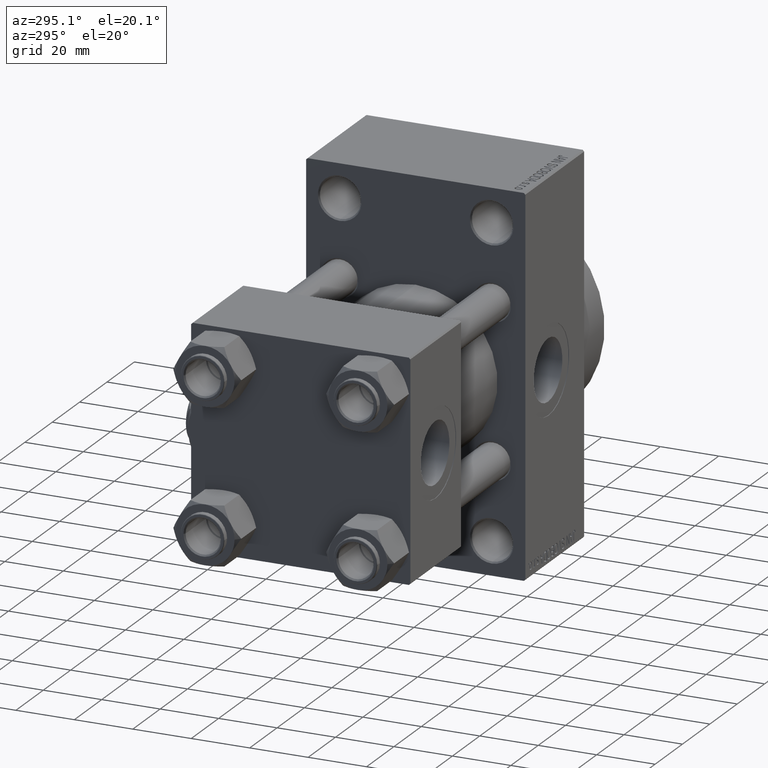
[diagram: clean part render]
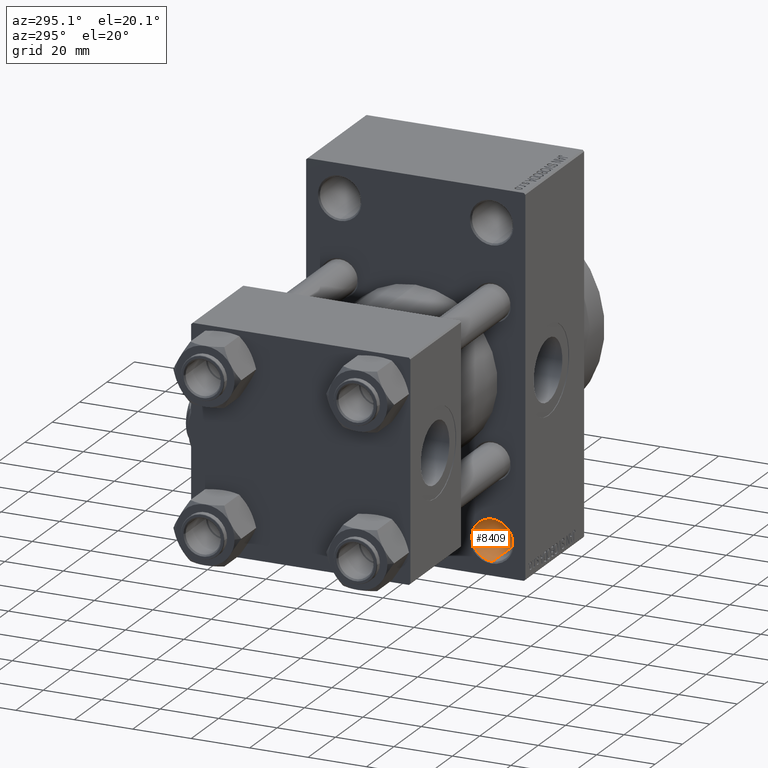
[diagram: same view with one face highlighted and labeled with its STEP entity id]
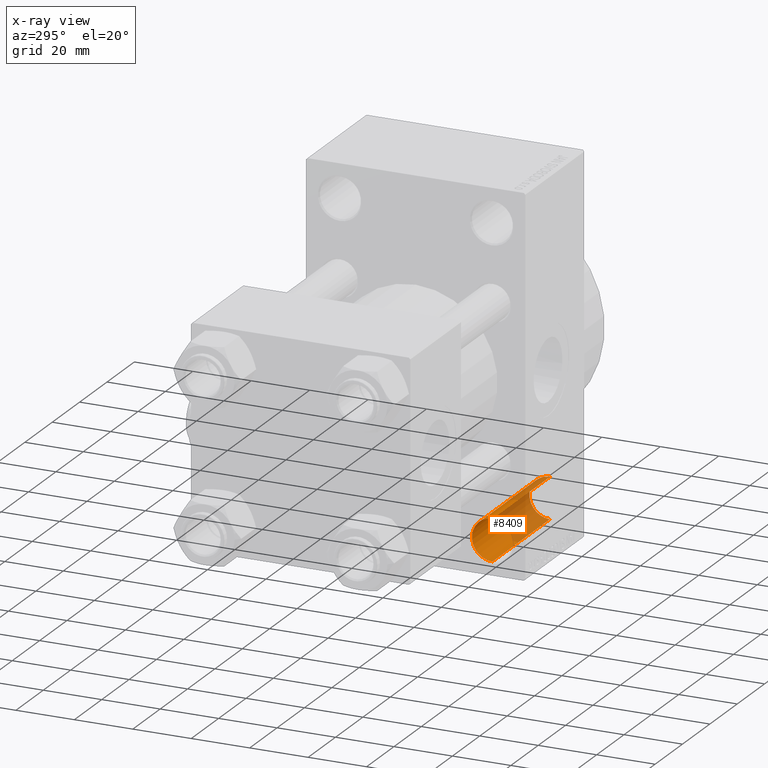
[diagram: x-ray of the same camera — body ghosted, the highlighted face saturated]
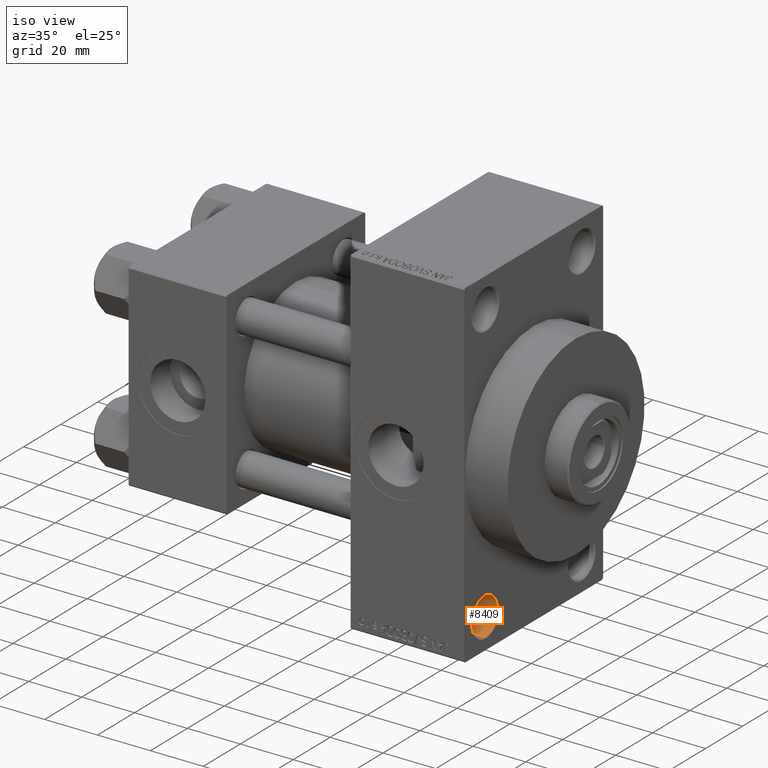
[diagram: same view with one face highlighted and labeled with its STEP entity id]
A machine part, auxiliary view. The second image highlights one B-rep face of the part: STEP entity #8409.
The next image is the same camera in x-ray: the body ghosted, the highlighted face saturated — about 50% of this face is hidden behind the body in this view.
A second angle (iso view) of the same face is appended — the face is thin or edge-on in the first view.
In plain terms, the highlighted cylindrical surface (edge-blend (fillet) strip) has radius 7 mm, axis along (1, 0, 0).
Its self-contained STEP definition (entity closure, byte-faithful):
#1179 = DIRECTION ( 'NONE',  ( 1.000000000000000000, -0.000000000000000000, -0.000000000000000000 ) ) ;
#3172 = DIRECTION ( 'NONE',  ( 1.000000000000000000, -0.000000000000000000, -0.000000000000000000 ) ) ;
#3577 = EDGE_LOOP ( 'NONE', ( #32230, #26250, #49302, #37883 ) ) ;
#4479 = CARTESIAN_POINT ( 'NONE',  ( 126.5000000000000284, -25.99999999999999645, -45.49999999999999289 ) ) ;
#6802 = FACE_OUTER_BOUND ( 'NONE', #3577, .T. ) ;
#6881 = DIRECTION ( 'NONE',  ( 0.000000000000000000, 0.000000000000000000, 1.000000000000000000 ) ) ;
#8409 = ADVANCED_FACE ( 'NONE', ( #6802 ), #14541, .F. ) ;
#10791 = DIRECTION ( 'NONE',  ( 1.000000000000000000, -0.000000000000000000, -0.000000000000000000 ) ) ;
#11186 = DIRECTION ( 'NONE',  ( -1.000000000000000000, -0.000000000000000000, -0.000000000000000000 ) ) ;
#11370 = CARTESIAN_POINT ( 'NONE',  ( 84.50000000000004263, -25.99999999999999645, -59.49999999999999289 ) ) ;
#11666 = CARTESIAN_POINT ( 'NONE',  ( 126.5000000000000284, -25.99999999999999645, -59.49999999999999289 ) ) ;
#13628 = CARTESIAN_POINT ( 'NONE',  ( 126.5000000000000284, -25.99999999999999645, -52.49999999999999289 ) ) ;
#14510 = VERTEX_POINT ( 'NONE', #24112 ) ;
#14541 = CYLINDRICAL_SURFACE ( 'NONE', #44846, 6.999999999999999112 ) ;
#15552 = EDGE_CURVE ( 'NONE', #40600, #28012, #33057, .T. ) ;
#20388 = LINE ( 'NONE', #46534, #45267 ) ;
#22125 = CARTESIAN_POINT ( 'NONE',  ( 64.20101012677666574, -25.99999999999999645, -45.49999999999999289 ) ) ;
#24112 = CARTESIAN_POINT ( 'NONE',  ( 84.50000000000004263, -25.99999999999999645, -45.49999999999999289 ) ) ;
#25412 = AXIS2_PLACEMENT_3D ( 'NONE', #46301, #11186, #38827 ) ;
#26250 = ORIENTED_EDGE ( 'NONE', *, *, #43554, .T. ) ;
#28012 = VERTEX_POINT ( 'NONE', #4479 ) ;
#28262 = EDGE_CURVE ( 'NONE', #44053, #40600, #20388, .T. ) ;
#32230 = ORIENTED_EDGE ( 'NONE', *, *, #44806, .F. ) ;
#32263 = AXIS2_PLACEMENT_3D ( 'NONE', #13628, #32834, #6881 ) ;
#32834 = DIRECTION ( 'NONE',  ( 1.000000000000000000, 0.000000000000000000, 0.000000000000000000 ) ) ;
#33057 = CIRCLE ( 'NONE', #32263, 6.999999999999999112 ) ;
#37354 = VECTOR ( 'NONE', #3172, 1000.000000000000000 ) ;
#37883 = ORIENTED_EDGE ( 'NONE', *, *, #15552, .T. ) ;
#38827 = DIRECTION ( 'NONE',  ( 0.000000000000000000, 0.000000000000000000, 1.000000000000000000 ) ) ;
#38913 = CIRCLE ( 'NONE', #25412, 6.999999999999999112 ) ;
#40600 = VERTEX_POINT ( 'NONE', #11666 ) ;
#43554 = EDGE_CURVE ( 'NONE', #14510, #44053, #38913, .T. ) ;
#44053 = VERTEX_POINT ( 'NONE', #11370 ) ;
#44446 = CARTESIAN_POINT ( 'NONE',  ( 64.20101012677666574, -25.99999999999999645, -52.49999999999999289 ) ) ;
#44806 = EDGE_CURVE ( 'NONE', #14510, #28012, #48274, .T. ) ;
#44846 = AXIS2_PLACEMENT_3D ( 'NONE', #44446, #10791, #48673 ) ;
#45267 = VECTOR ( 'NONE', #1179, 1000.000000000000000 ) ;
#46301 = CARTESIAN_POINT ( 'NONE',  ( 84.50000000000004263, -25.99999999999999645, -52.49999999999999289 ) ) ;
#46534 = CARTESIAN_POINT ( 'NONE',  ( 64.20101012677666574, -25.99999999999999645, -59.49999999999999289 ) ) ;
#48274 = LINE ( 'NONE', #22125, #37354 ) ;
#48673 = DIRECTION ( 'NONE',  ( 0.000000000000000000, 0.000000000000000000, -1.000000000000000000 ) ) ;
#49302 = ORIENTED_EDGE ( 'NONE', *, *, #28262, .T. ) ;